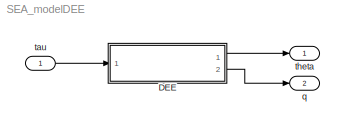
MODEL SEA_modelDEE
KIND model
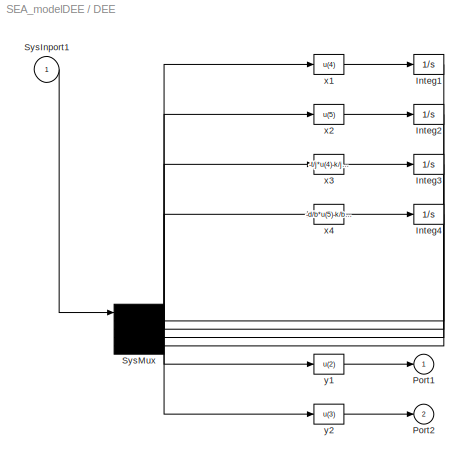
BLOCK [SubSystem] DEE
  FunctionWithSeparateData = off
  MaskHideContents = off
  MinAlgLoopOccurrences = off
  Opaque = off
  OpenFcn = diffeqed
  Ports = [1, 2]
  PropExecContextOutsideSubsystem = off
  RTWSystemCode = Auto
  RequestExecContextInheritance = off
  SID = 2
BLOCK [Integrator] DEE/Integ1
  InitialCondition = X0(1)
  Ports = [1, 1]
  SID = 4
BLOCK [Integrator] DEE/Integ2
  InitialCondition = X0(2)
  Ports = [1, 1]
  SID = 5
BLOCK [Integrator] DEE/Integ3
  InitialCondition = X0(3)
  Ports = [1, 1]
  SID = 6
BLOCK [Integrator] DEE/Integ4
  InitialCondition = X0(4)
  Ports = [1, 1]
  SID = 7
BLOCK [Outport] DEE/Port1
  IconDisplay = Port number
  SID = 15
BLOCK [Outport] DEE/Port2
  IconDisplay = Port number
  Port = 2
  SID = 16
BLOCK [Inport] DEE/SysInport1
  IconDisplay = Port number
  SID = 3
BLOCK [Mux] DEE/SysMux
  Inputs = 5
  Ports = [5, 1]
  SID = 8
BLOCK [Fcn] DEE/x1
  Expr = u(4)
  SID = 9
BLOCK [Fcn] DEE/x2
  Expr = u(5)
  SID = 10
BLOCK [Fcn] DEE/x3
  Expr = -t/j*u(4)-k/j*(u(2)-u(3))-m*g*l/j*cos(u(2))
  SID = 11
BLOCK [Fcn] DEE/x4
  Expr = -d/b*u(5)-k/b*(u(3)-u(2))+1/b*u
  SID = 12
BLOCK [Fcn] DEE/y1
  Expr = u(2)
  SID = 13
BLOCK [Fcn] DEE/y2
  Expr = u(3)
  SID = 14
BLOCK [Outport] q
  IconDisplay = Port number
  Port = 2
  SID = 18
BLOCK [Inport] tau
  IconDisplay = Port number
  SID = 1
BLOCK [Outport] theta
  IconDisplay = Port number
  SID = 17
LINE DEE/Integ1:1 -> DEE/SysMux:2
LINE DEE/Integ2:1 -> DEE/SysMux:3
LINE DEE/Integ3:1 -> DEE/SysMux:4
LINE DEE/Integ4:1 -> DEE/SysMux:5
LINE DEE/SysInport1:1 -> DEE/SysMux:1
NET DEE/SysMux:1 -> DEE/x1:1, DEE/x2:1, DEE/x3:1, DEE/x4:1, DEE/y1:1, DEE/y2:1
LINE DEE/x1:1 -> DEE/Integ1:1
LINE DEE/x2:1 -> DEE/Integ2:1
LINE DEE/x3:1 -> DEE/Integ3:1
LINE DEE/x4:1 -> DEE/Integ4:1
LINE DEE/y1:1 -> DEE/Port1:1
LINE DEE/y2:1 -> DEE/Port2:1
LINE DEE:1 -> theta:1
LINE DEE:2 -> q:1
LINE tau:1 -> DEE:1
note: NET lines group one-source signal fan-out (src -> all destinations, sorted); 1:1 wires keep LINE
